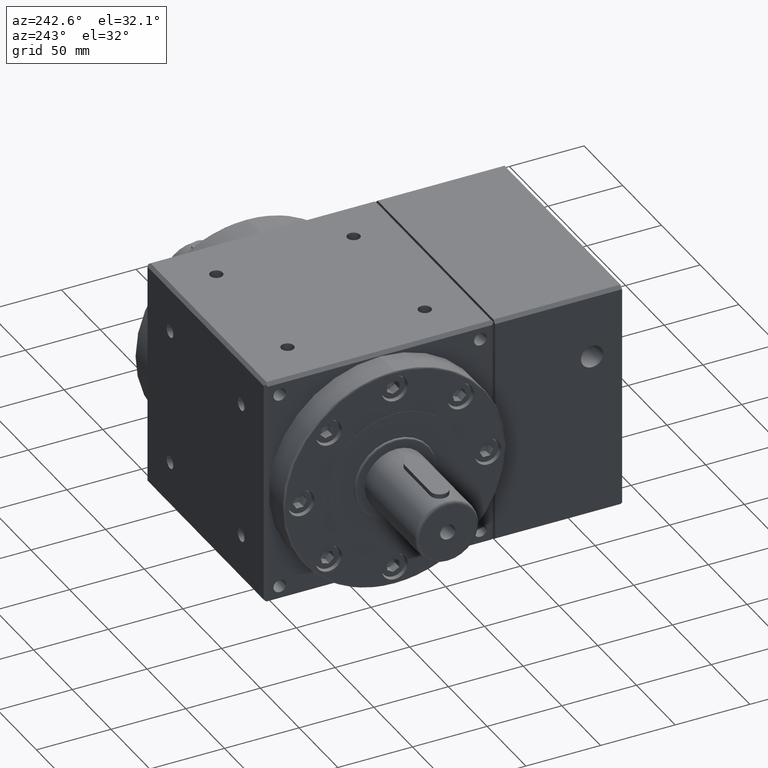
[diagram: clean part render]
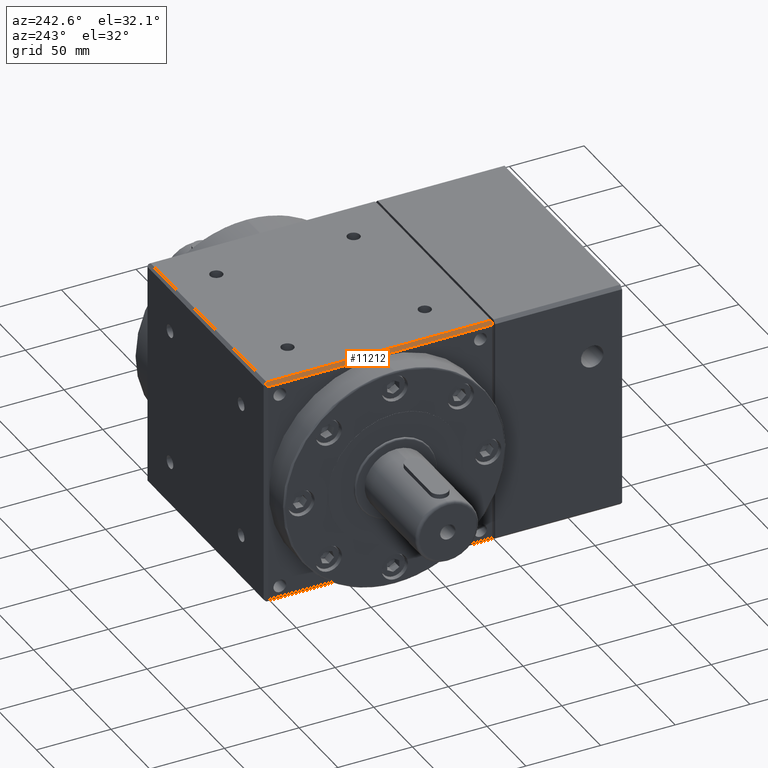
[diagram: same view with one face highlighted and labeled with its STEP entity id]
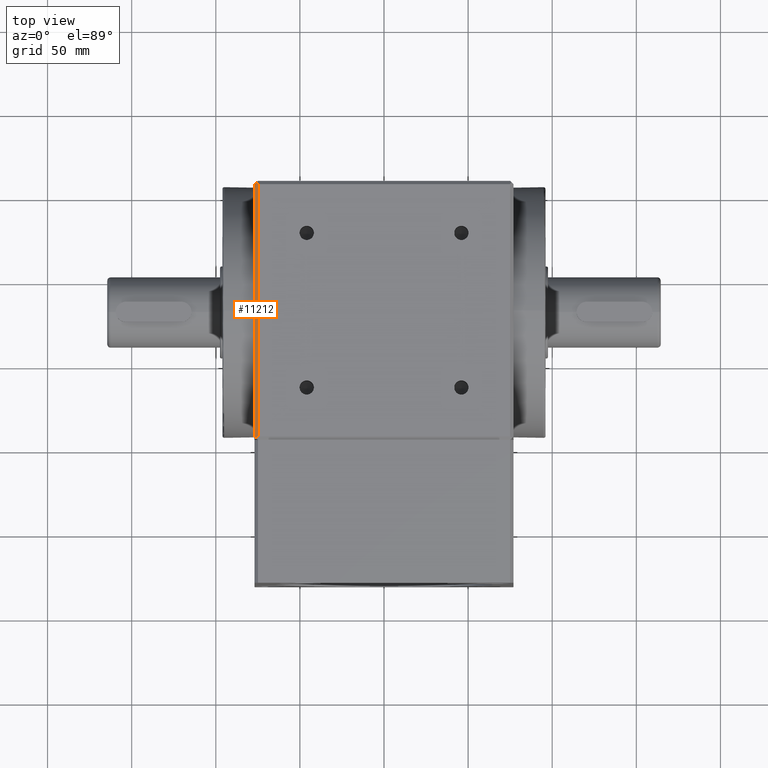
[diagram: same view with one face highlighted and labeled with its STEP entity id]
A machine part, auxiliary view. The second image highlights one B-rep face of the part: STEP entity #11212.
A second angle (top view) of the same face is appended — the face is thin or edge-on in the first view.
In plain terms, the highlighted cylindrical surface (partial cylindrical patch) has radius 107.4 mm, axis along (-0, -1, -0).
Its self-contained STEP definition (entity closure, byte-faithful):
#1066 = ORIENTED_EDGE ( 'NONE', *, *, #17292, .T. ) ;
#1607 = CARTESIAN_POINT ( 'NONE',  ( -75.23047220048115900, 206.6510702916165800, 76.65107029161659100 ) ) ;
#1766 = VECTOR ( 'NONE', #2495, 1000.000000000000000 ) ;
#1857 = ORIENTED_EDGE ( 'NONE', *, *, #12139, .T. ) ;
#2261 = CARTESIAN_POINT ( 'NONE',  ( -76.99999999999998600, 357.0000000000000000, 74.87162346309858700 ) ) ;
#2495 = DIRECTION ( 'NONE',  ( 0.0000000000000000000, 1.000000000000000000, 0.0000000000000000000 ) ) ;
#2524 = VERTEX_POINT ( 'NONE', #3573 ) ;
#2934 = FACE_OUTER_BOUND ( 'NONE', #14034, .T. ) ;
#3097 = CARTESIAN_POINT ( 'NONE',  ( -77.00000000000001400, 207.0000000000001400, 74.87162346309854400 ) ) ;
#3187 = DIRECTION ( 'NONE',  ( -0.0000000000000000000, -1.000000000000000000, -0.0000000000000000000 ) ) ;
#3228 = CARTESIAN_POINT ( 'NONE',  ( -74.87162346309848700, 357.0000000000000000, 77.00000000000004300 ) ) ;
#3573 = CARTESIAN_POINT ( 'NONE',  ( -77.00000000000001400, 207.0000000000001400, 74.87162346309854400 ) ) ;
#4105 = VERTEX_POINT ( 'NONE', #7655 ) ;
#4762 = CARTESIAN_POINT ( 'NONE',  ( -75.58852146102883300, 357.7019848621584400, 76.29801513784160200 ) ) ;
#4868 = VERTEX_POINT ( 'NONE', #16334 ) ;
#5217 = ORIENTED_EDGE ( 'NONE', *, *, #14927, .T. ) ;
#5642 = CARTESIAN_POINT ( 'NONE',  ( -75.94326829943517500, 358.0567317005648500, 75.94326829943523200 ) ) ;
#6284 = CARTESIAN_POINT ( 'NONE',  ( -76.29883220811203200, 206.2988322075210600, 75.58770439193226300 ) ) ;
#6442 = DIRECTION ( 'NONE',  ( 0.0000000000000000000, 0.0000000000000000000, -1.000000000000000000 ) ) ;
#7655 = CARTESIAN_POINT ( 'NONE',  ( -75.94326829943517500, 358.0567317005648500, 75.94326829943523200 ) ) ;
#8369 = LINE ( 'NONE', #16739, #16058 ) ;
#9264 = B_SPLINE_CURVE_WITH_KNOTS ( 'NONE', 3,
 ( #13223, #19421, #14852, #5642 ),
 .UNSPECIFIED., .F., .F.,
 ( 4, 4 ),
 ( 0.0000000000000000000, 1.000000000000000000 ),
 .UNSPECIFIED. ) ;
#9427 = CARTESIAN_POINT ( 'NONE',  ( -75.94326808005526200, 205.9432684561352600, 75.94326851881513100 ) ) ;
#9556 = AXIS2_PLACEMENT_3D ( 'NONE', #17143, #3187, #6442 ) ;
#9874 = B_SPLINE_CURVE_WITH_KNOTS ( 'NONE', 3,
 ( #9427, #10976, #1607, #12495 ),
 .UNSPECIFIED., .F., .F.,
 ( 4, 4 ),
 ( 6.855579472346634100E-008, 1.000000000000000000 ),
 .UNSPECIFIED. ) ;
#9957 = VERTEX_POINT ( 'NONE', #11979 ) ;
#10976 = CARTESIAN_POINT ( 'NONE',  ( -75.58771013942144600, 206.2988264575905400, 76.29882645759039400 ) ) ;
#11212 = ADVANCED_FACE ( 'NONE', ( #2934 ), #13339, .T. ) ;
#11447 = VERTEX_POINT ( 'NONE', #2261 ) ;
#11979 = CARTESIAN_POINT ( 'NONE',  ( -75.94326808005526200, 205.9432684561352600, 75.94326851881513100 ) ) ;
#12056 = VERTEX_POINT ( 'NONE', #16974 ) ;
#12104 = ORIENTED_EDGE ( 'NONE', *, *, #17568, .F. ) ;
#12139 = EDGE_CURVE ( 'NONE', #9957, #4868, #9874, .T. ) ;
#12288 = ORIENTED_EDGE ( 'NONE', *, *, #13122, .T. ) ;
#12401 = CARTESIAN_POINT ( 'NONE',  ( -76.65107606592262400, 206.6510760659226900, 75.23046626202888400 ) ) ;
#12495 = CARTESIAN_POINT ( 'NONE',  ( -74.87162346309848700, 207.0000000000001400, 77.00000000000004300 ) ) ;
#12515 = CARTESIAN_POINT ( 'NONE',  ( -75.23130651558328500, 357.3497409619701600, 76.65025903802988700 ) ) ;
#13122 = EDGE_CURVE ( 'NONE', #2524, #9957, #14389, .T. ) ;
#13223 = CARTESIAN_POINT ( 'NONE',  ( -76.99999999999998600, 357.0000000000000000, 74.87162346309858700 ) ) ;
#13339 = CYLINDRICAL_SURFACE ( 'NONE', #9556, 107.4000000000000200 ) ;
#13354 = CARTESIAN_POINT ( 'NONE',  ( -74.87162346309847300, 0.0000000000000000000, 77.00000000000004300 ) ) ;
#14016 = B_SPLINE_CURVE_WITH_KNOTS ( 'NONE', 3,
 ( #15556, #4762, #12515, #3228 ),
 .UNSPECIFIED., .F., .F.,
 ( 4, 4 ),
 ( 0.0000000000000000000, 1.000000000000000000 ),
 .UNSPECIFIED. ) ;
#14034 = EDGE_LOOP ( 'NONE', ( #1857, #5217, #12104, #16538, #1066, #12288 ) ) ;
#14389 = B_SPLINE_CURVE_WITH_KNOTS ( 'NONE', 3,
 ( #3097, #12401, #6284, #17066 ),
 .UNSPECIFIED., .F., .F.,
 ( 4, 4 ),
 ( 0.0000000000000000000, 1.000000000000000000 ),
 .UNSPECIFIED. ) ;
#14852 = CARTESIAN_POINT ( 'NONE',  ( -76.29801513784318000, 357.7019848621567900, 75.58852146102738300 ) ) ;
#14927 = EDGE_CURVE ( 'NONE', #4868, #12056, #17821, .T. ) ;
#15556 = CARTESIAN_POINT ( 'NONE',  ( -75.94326829943517500, 358.0567317005648500, 75.94326829943523200 ) ) ;
#16058 = VECTOR ( 'NONE', #19785, 1000.000000000000000 ) ;
#16334 = CARTESIAN_POINT ( 'NONE',  ( -74.87162346309848700, 207.0000000000001400, 77.00000000000004300 ) ) ;
#16538 = ORIENTED_EDGE ( 'NONE', *, *, #17869, .F. ) ;
#16739 = CARTESIAN_POINT ( 'NONE',  ( -76.99999999999995700, 0.0000000000000000000, 74.87162346309857200 ) ) ;
#16974 = CARTESIAN_POINT ( 'NONE',  ( -74.87162346309848700, 357.0000000000000000, 77.00000000000004300 ) ) ;
#17066 = CARTESIAN_POINT ( 'NONE',  ( -75.94326808005526200, 205.9432684561352600, 75.94326851881513100 ) ) ;
#17143 = CARTESIAN_POINT ( 'NONE',  ( 0.0000000000000000000, 0.0000000000000000000, 0.0000000000000000000 ) ) ;
#17292 = EDGE_CURVE ( 'NONE', #11447, #2524, #8369, .T. ) ;
#17568 = EDGE_CURVE ( 'NONE', #4105, #12056, #14016, .T. ) ;
#17821 = LINE ( 'NONE', #13354, #1766 ) ;
#17869 = EDGE_CURVE ( 'NONE', #11447, #4105, #9264, .T. ) ;
#19421 = CARTESIAN_POINT ( 'NONE',  ( -76.65025903803145000, 357.3497409619685100, 75.23130651558183500 ) ) ;
#19785 = DIRECTION ( 'NONE',  ( -0.0000000000000000000, -1.000000000000000000, -0.0000000000000000000 ) ) ;